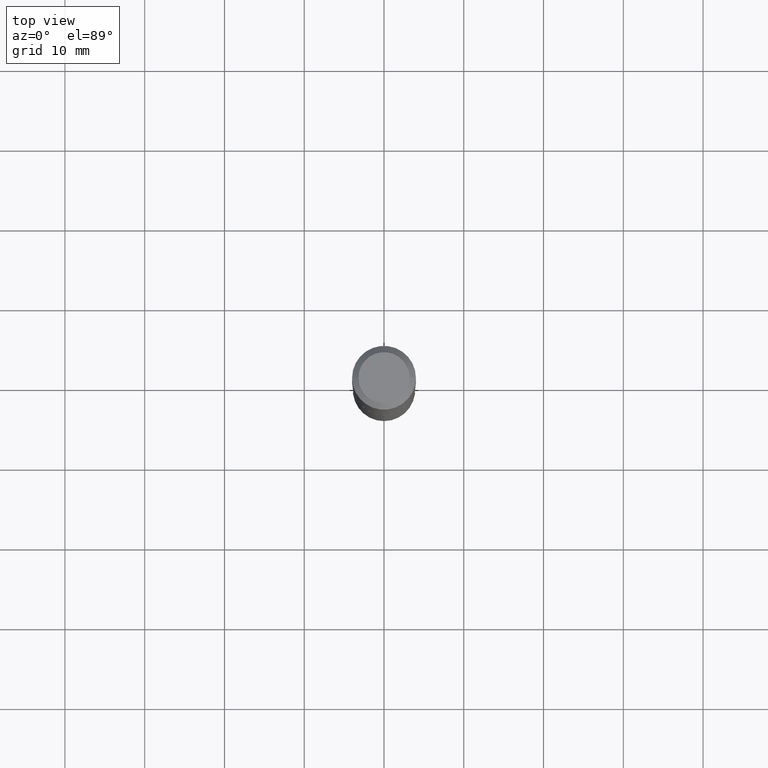
[diagram: clean part render]
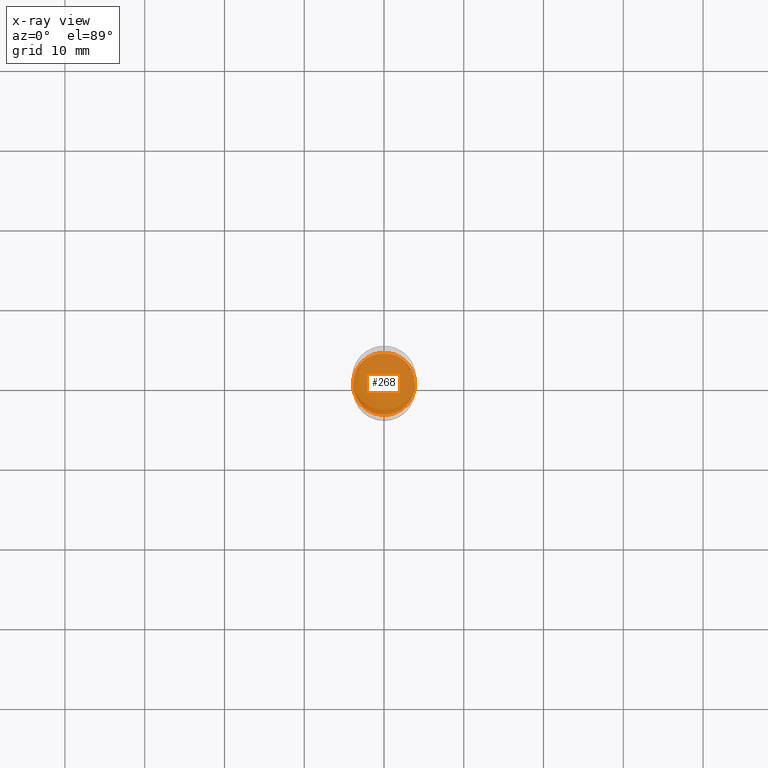
[diagram: x-ray — body ghosted, one internal face saturated and labeled with its STEP entity id]
A machine part, top view, then the same camera in x-ray: the body is ghosted and one INTERNAL B-rep face — a face not visible from any outside direction — is saturated and labeled: STEP entity #268.
In plain terms, the highlighted planar face has unit normal (-0, 0, 1).
Its self-contained STEP definition (entity closure, byte-faithful):
#4 = FACE_OUTER_BOUND ( 'NONE', #106, .T. ) ;
#27 = AXIS2_PLACEMENT_3D ( 'NONE', #80, #379, #44 ) ;
#39 = CARTESIAN_POINT ( 'NONE',  ( 0.1530499999999999916, -7.364581588021842889E-15, -1.803200000000000136 ) ) ;
#44 = DIRECTION ( 'NONE',  ( 1.000000000000000000, -6.982962677686265922E-15, 0.000000000000000000 ) ) ;
#62 = EDGE_CURVE ( 'NONE', #209, #474, #434, .T. ) ;
#80 = CARTESIAN_POINT ( 'NONE',  ( 4.409669351313038346E-29, -6.295839150201959750E-15, -1.803200000000000136 ) ) ;
#106 = EDGE_LOOP ( 'NONE', ( #280, #138 ) ) ;
#138 = ORIENTED_EDGE ( 'NONE', *, *, #479, .F. ) ;
#153 = CARTESIAN_POINT ( 'NONE',  ( 4.409669351313038346E-29, -6.295839150201959750E-15, -1.803200000000000136 ) ) ;
#199 = DIRECTION ( 'NONE',  ( 1.000000000000000000, -6.982962677686265922E-15, 0.000000000000000000 ) ) ;
#209 = VERTEX_POINT ( 'NONE', #39 ) ;
#229 = CIRCLE ( 'NONE', #438, 0.1530499999999999916 ) ;
#259 = DIRECTION ( 'NONE',  ( 1.000000000000000000, -6.982962677686265922E-15, 4.876176775795935793E-29 ) ) ;
#266 = DIRECTION ( 'NONE',  ( -2.438088387897960049E-29, 3.491481338843145188E-15, 1.000000000000000000 ) ) ;
#268 = ADVANCED_FACE ( 'NONE', ( #4 ), #372, .F. ) ;
#279 = AXIS2_PLACEMENT_3D ( 'NONE', #153, #266, #259 ) ;
#280 = ORIENTED_EDGE ( 'NONE', *, *, #62, .F. ) ;
#372 = PLANE ( 'NONE',  #279 ) ;
#379 = DIRECTION ( 'NONE',  ( -2.445468806185136597E-29, 3.491481338843145583E-15, 1.000000000000000000 ) ) ;
#389 = DIRECTION ( 'NONE',  ( -2.445468806185136597E-29, 3.491481338843145583E-15, 1.000000000000000000 ) ) ;
#394 = CARTESIAN_POINT ( 'NONE',  ( -0.1530499999999999916, -5.205704265947015077E-15, -1.803200000000000136 ) ) ;
#434 = CIRCLE ( 'NONE', #27, 0.1530499999999999916 ) ;
#438 = AXIS2_PLACEMENT_3D ( 'NONE', #463, #389, #199 ) ;
#463 = CARTESIAN_POINT ( 'NONE',  ( 4.409669351313038346E-29, -6.295839150201959750E-15, -1.803200000000000136 ) ) ;
#474 = VERTEX_POINT ( 'NONE', #394 ) ;
#479 = EDGE_CURVE ( 'NONE', #474, #209, #229, .T. ) ;